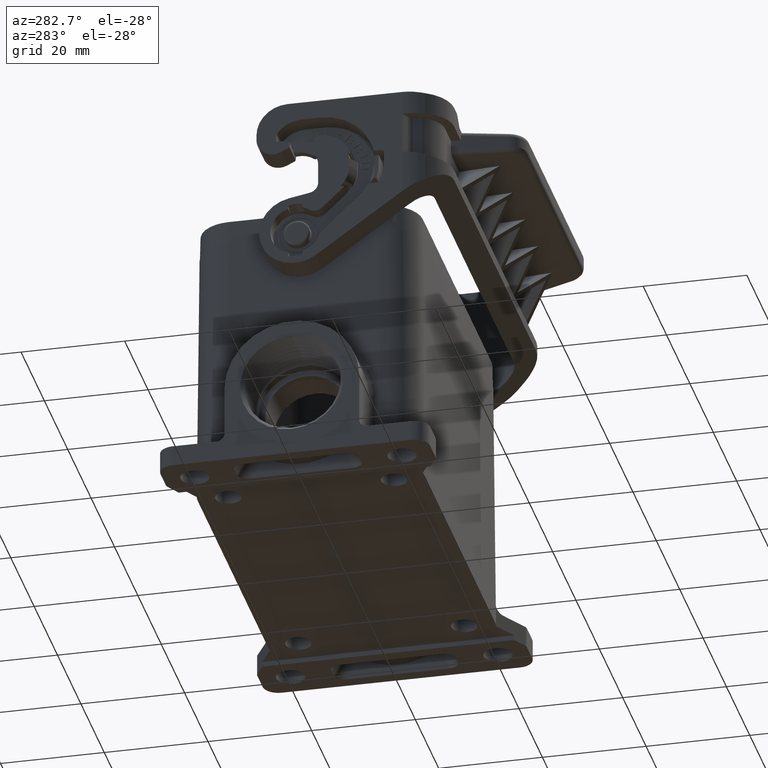
[diagram: clean part render]
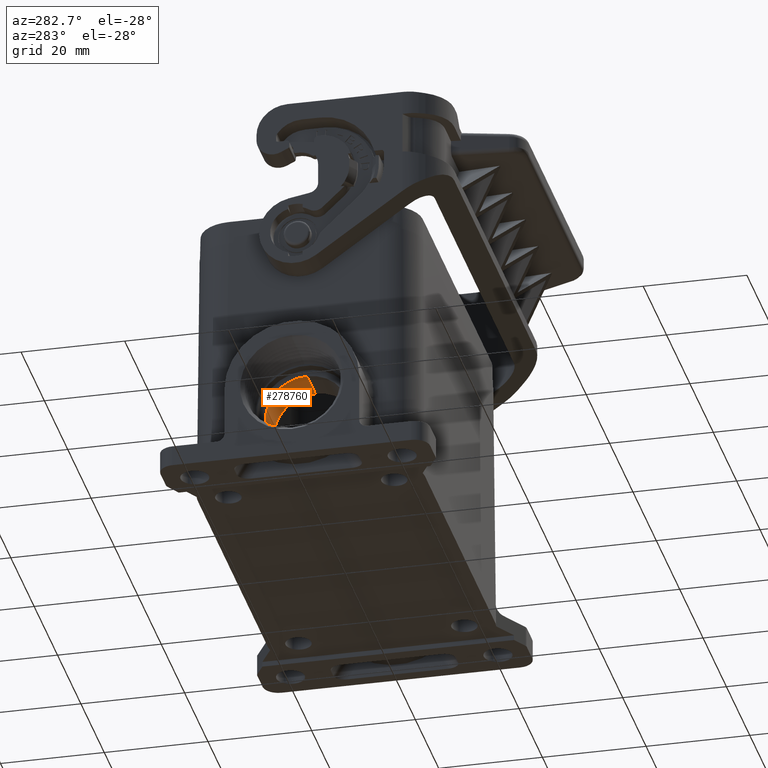
[diagram: same view with one face highlighted and labeled with its STEP entity id]
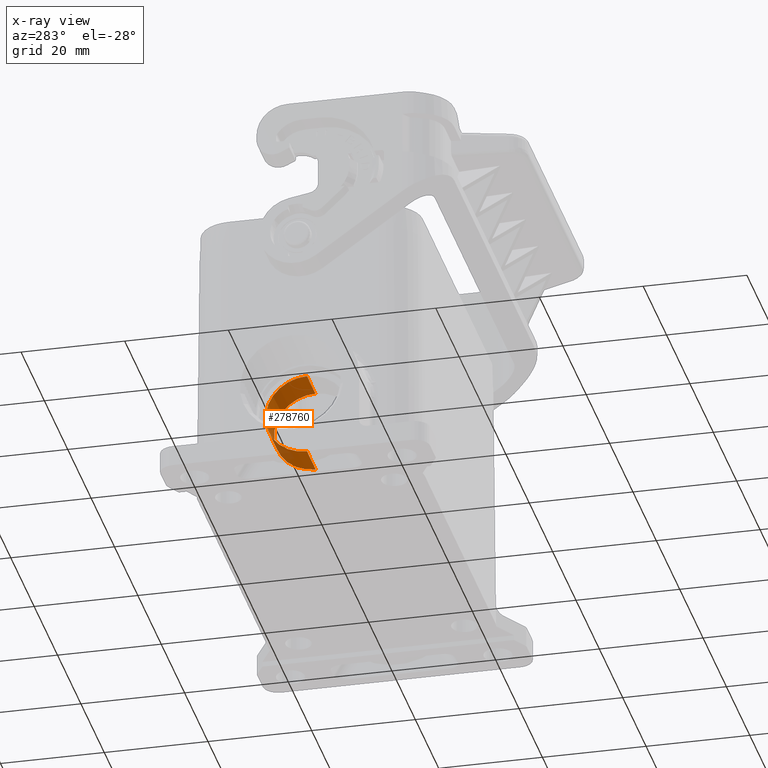
[diagram: x-ray of the same camera — body ghosted, the highlighted face saturated]
A machine part, auxiliary view. The second image highlights one B-rep face of the part: STEP entity #278760.
The next image is the same camera in x-ray: the body ghosted, the highlighted face saturated — about 13% of this face is hidden behind the body in this view.
In plain terms, the highlighted cylindrical surface (partial cylindrical patch) has radius 8 mm, axis along (1, 0, 0).
Its self-contained STEP definition (entity closure, byte-faithful):
#4320=CARTESIAN_POINT('',(41.82493,7.39414797392326,-28.5));
#4330=DIRECTION('',(0.,1.,1.50949346233852E-48));
#4340=VECTOR('',#4330,1.);
#4350=LINE('',#4320,#4340);
#4360=CARTESIAN_POINT('',(41.82493,6.15732200000003,-28.5));
#4370=VERTEX_POINT('',#4360);
#4380=CARTESIAN_POINT('',(41.82493,13.3413335101991,-28.5));
#4390=VERTEX_POINT('',#4380);
#4400=EDGE_CURVE('',#4370,#4390,#4350,.T.);
#4420=CARTESIAN_POINT('',(41.82493,6.15732200000003,-36.5));
#4430=DIRECTION('',(0.,1.,1.50949346233852E-48));
#4440=DIRECTION('',(-6.12323293943686E-17,1.50949346233852E-48,-1.));
#4450=AXIS2_PLACEMENT_3D('',#4420,#4430,#4440);
#4460=CIRCLE('',#4450,8.);
#4470=CARTESIAN_POINT('',(41.82493,6.15732200000003,-44.5));
#4480=VERTEX_POINT('',#4470);
#4510=CARTESIAN_POINT('',(41.82493,7.39414797392326,-44.5));
#4520=DIRECTION('',(0.,1.,1.50949346233852E-48));
#4530=VECTOR('',#4520,1.);
#4540=LINE('',#4510,#4530);
#4550=CARTESIAN_POINT('',(41.82493,13.6206145490506,-44.5));
#4560=VERTEX_POINT('',#4550);
#4570=EDGE_CURVE('',#4480,#4560,#4540,.T.);
#4590=CARTESIAN_POINT('',(41.82493,13.4809740296248,-36.5));
#4600=DIRECTION('',(0.,0.999847695156391,0.0174524064372833));
#4610=DIRECTION('',(0.,0.0174524064372833,-0.999847695156391));
#4620=AXIS2_PLACEMENT_3D('',#4590,#4600,#4610);
#4630=ELLIPSE('',#4620,8.00121862435126,8.);
#4810=EDGE_CURVE('',#4560,#4390,#4630,.T.);
#278640=CARTESIAN_POINT('',(41.82493,7.39414797392326,-36.5));
#278650=DIRECTION('',(0.,1.,1.50949346233852E-48));
#278660=DIRECTION('',(-6.12323293943686E-17,0.,-1.));
#278670=AXIS2_PLACEMENT_3D('',#278640,#278650,#278660);
#278680=CYLINDRICAL_SURFACE('',#278670,8.);
#278690=EDGE_CURVE('',#4480,#4370,#4460,.T.);
#278700=ORIENTED_EDGE('',*,*,#278690,.F.);
#278710=ORIENTED_EDGE('',*,*,#4400,.F.);
#278720=ORIENTED_EDGE('',*,*,#4810,.T.);
#278730=ORIENTED_EDGE('',*,*,#4570,.T.);
#278740=EDGE_LOOP('',(#278730,#278720,#278710,#278700));
#278750=FACE_OUTER_BOUND('',#278740,.T.);
#278760=ADVANCED_FACE('',(#278750),#278680,.F.);